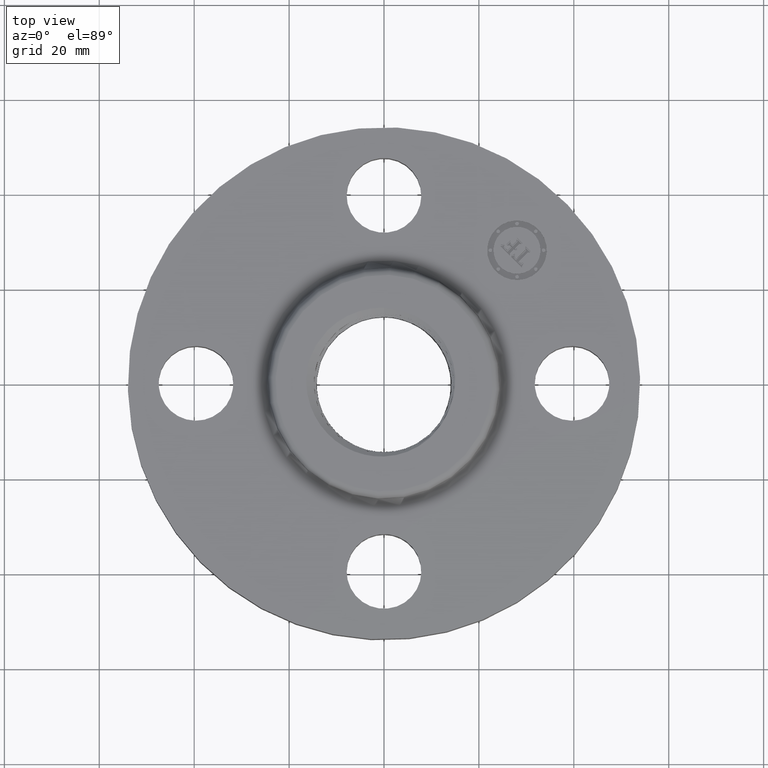
[diagram: clean part render]
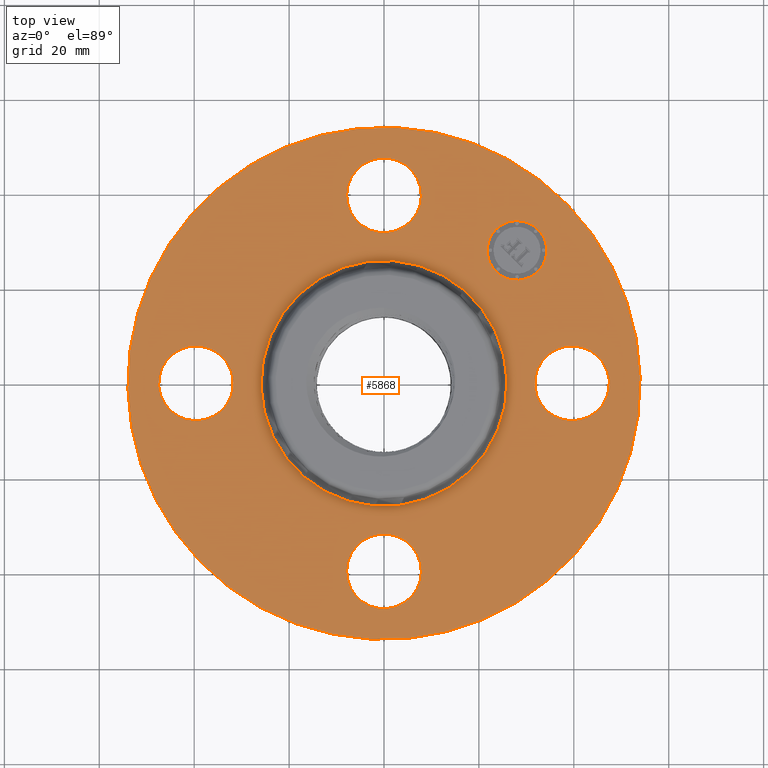
[diagram: same view with one face highlighted and labeled with its STEP entity id]
A machine part, top view. The second image highlights one B-rep face of the part: STEP entity #5868.
In plain terms, the highlighted planar face has unit normal (0, 0, -1).
Its self-contained STEP definition (entity closure, byte-faithful):
#525=AXIS2_PLACEMENT_3D('Circle Axis2P3D',#523,#524,$) ;
#549=AXIS2_PLACEMENT_3D('Circle Axis2P3D',#547,#548,$) ;
#583=AXIS2_PLACEMENT_3D('Circle Axis2P3D',#581,#582,$) ;
#607=AXIS2_PLACEMENT_3D('Circle Axis2P3D',#605,#606,$) ;
#624=AXIS2_PLACEMENT_3D('Circle Axis2P3D',#622,#623,$) ;
#659=AXIS2_PLACEMENT_3D('Circle Axis2P3D',#657,#658,$) ;
#936=AXIS2_PLACEMENT_3D('Circle Axis2P3D',#934,#935,$) ;
#948=AXIS2_PLACEMENT_3D('Circle Axis2P3D',#946,#947,$) ;
#980=AXIS2_PLACEMENT_3D('Circle Axis2P3D',#978,#979,$) ;
#992=AXIS2_PLACEMENT_3D('Circle Axis2P3D',#990,#991,$) ;
#1024=AXIS2_PLACEMENT_3D('Circle Axis2P3D',#1022,#1023,$) ;
#1036=AXIS2_PLACEMENT_3D('Circle Axis2P3D',#1034,#1035,$) ;
#5824=AXIS2_PLACEMENT_3D('Plane Axis2P3D',#5821,#5822,#5823) ;
#5852=AXIS2_PLACEMENT_3D('Circle Axis2P3D',#5850,#5851,$) ;
#5861=AXIS2_PLACEMENT_3D('Circle Axis2P3D',#5859,#5860,$) ;
#506=CARTESIAN_POINT('Vertex',(-0.272050594187,1.70862191697,0.500000000002)) ;
#520=CARTESIAN_POINT('Vertex',(0.272050594187,1.41137808304,0.500000000002)) ;
#523=CARTESIAN_POINT('Axis2P3D Location',(0.,1.56000000001,0.500000000002)) ;
#547=CARTESIAN_POINT('Axis2P3D Location',(0.,1.56000000001,0.500000000002)) ;
#578=CARTESIAN_POINT('Vertex',(-1.01877926954,-1.86486294402,0.500000000002)) ;
#581=CARTESIAN_POINT('Axis2P3D Location',(0.,0.,0.500000000002)) ;
#585=CARTESIAN_POINT('Vertex',(1.01877926954,1.86486294402,0.500000000002)) ;
#605=CARTESIAN_POINT('Axis2P3D Location',(0.,0.,0.500000000002)) ;
#622=CARTESIAN_POINT('Axis2P3D Location',(0.,0.,0.500000000002)) ;
#626=CARTESIAN_POINT('Vertex',(0.489179920005,0.895437837278,0.500000000002)) ;
#628=CARTESIAN_POINT('Vertex',(-0.489179920005,-0.895437837278,0.500000000002)) ;
#657=CARTESIAN_POINT('Axis2P3D Location',(0.,0.,0.500000000002)) ;
#924=CARTESIAN_POINT('Vertex',(1.70862191697,0.272050594187,0.500000000002)) ;
#931=CARTESIAN_POINT('Vertex',(1.41137808304,-0.272050594187,0.500000000002)) ;
#934=CARTESIAN_POINT('Axis2P3D Location',(1.56000000001,9.55192955985E-017,0.500000000002)) ;
#946=CARTESIAN_POINT('Axis2P3D Location',(1.56000000001,9.55192955985E-017,0.500000000002)) ;
#968=CARTESIAN_POINT('Vertex',(-1.70862191697,-0.272050594187,0.500000000002)) ;
#975=CARTESIAN_POINT('Vertex',(-1.41137808304,0.272050594187,0.500000000002)) ;
#978=CARTESIAN_POINT('Axis2P3D Location',(-1.56000000001,-2.86557886796E-016,0.500000000002)) ;
#990=CARTESIAN_POINT('Axis2P3D Location',(-1.56000000001,-2.86557886796E-016,0.500000000002)) ;
#1012=CARTESIAN_POINT('Vertex',(0.272050594187,-1.70862191697,0.500000000002)) ;
#1019=CARTESIAN_POINT('Vertex',(-0.272050594187,-1.41137808304,0.500000000002)) ;
#1022=CARTESIAN_POINT('Axis2P3D Location',(1.91044721553E-016,-1.56000000001,0.500000000002)) ;
#1034=CARTESIAN_POINT('Axis2P3D Location',(1.91044721553E-016,-1.56000000001,0.500000000002)) ;
#5821=CARTESIAN_POINT('Axis2P3D Location',(0.,2.12500000001,0.500000000002)) ;
#5850=CARTESIAN_POINT('Axis2P3D Location',(1.10308657866,1.10308657866,0.500000000002)) ;
#5854=CARTESIAN_POINT('Vertex',(0.928077650311,1.278095507,0.500000000002)) ;
#5856=CARTESIAN_POINT('Vertex',(1.278095507,0.928077650311,0.500000000002)) ;
#5859=CARTESIAN_POINT('Axis2P3D Location',(1.10308657866,1.10308657866,0.500000000002)) ;
#524=DIRECTION('Axis2P3D Direction',(0.,-0.,-0.0393700787402)) ;
#548=DIRECTION('Axis2P3D Direction',(0.,-0.,-0.0393700787402)) ;
#582=DIRECTION('Axis2P3D Direction',(0.,0.,-0.0393700787402)) ;
#606=DIRECTION('Axis2P3D Direction',(0.,0.,-0.0393700787402)) ;
#623=DIRECTION('Axis2P3D Direction',(0.,0.,-0.0393700787402)) ;
#658=DIRECTION('Axis2P3D Direction',(0.,0.,-0.0393700787402)) ;
#935=DIRECTION('Axis2P3D Direction',(0.,-0.,-0.0393700787402)) ;
#947=DIRECTION('Axis2P3D Direction',(0.,-0.,-0.0393700787402)) ;
#979=DIRECTION('Axis2P3D Direction',(0.,0.,-0.0393700787402)) ;
#991=DIRECTION('Axis2P3D Direction',(0.,0.,-0.0393700787402)) ;
#1023=DIRECTION('Axis2P3D Direction',(-0.,0.,-0.0393700787402)) ;
#1035=DIRECTION('Axis2P3D Direction',(-0.,0.,-0.0393700787402)) ;
#5822=DIRECTION('Axis2P3D Direction',(0.,0.,-0.0393700787402)) ;
#5823=DIRECTION('Axis2P3D XDirection',(0.0393700787402,0.,0.)) ;
#5851=DIRECTION('Axis2P3D Direction',(0.,0.,-0.0393700787402)) ;
#5860=DIRECTION('Axis2P3D Direction',(0.,0.,-0.0393700787402)) ;
#5827=ORIENTED_EDGE('',*,*,#609,.F.) ;
#5828=ORIENTED_EDGE('',*,*,#587,.F.) ;
#5831=ORIENTED_EDGE('',*,*,#527,.T.) ;
#5832=ORIENTED_EDGE('',*,*,#551,.T.) ;
#5835=ORIENTED_EDGE('',*,*,#661,.T.) ;
#5836=ORIENTED_EDGE('',*,*,#630,.T.) ;
#5839=ORIENTED_EDGE('',*,*,#950,.T.) ;
#5840=ORIENTED_EDGE('',*,*,#938,.T.) ;
#5843=ORIENTED_EDGE('',*,*,#1038,.T.) ;
#5844=ORIENTED_EDGE('',*,*,#1026,.T.) ;
#5847=ORIENTED_EDGE('',*,*,#994,.T.) ;
#5848=ORIENTED_EDGE('',*,*,#982,.T.) ;
#5865=ORIENTED_EDGE('',*,*,#5858,.T.) ;
#5866=ORIENTED_EDGE('',*,*,#5863,.T.) ;
#5833=FACE_BOUND('',#5830,.T.) ;
#5837=FACE_BOUND('',#5834,.T.) ;
#5841=FACE_BOUND('',#5838,.T.) ;
#5845=FACE_BOUND('',#5842,.T.) ;
#5849=FACE_BOUND('',#5846,.T.) ;
#5867=FACE_BOUND('',#5864,.T.) ;
#5868=ADVANCED_FACE('PartBody',(#5829,#5833,#5837,#5841,#5845,#5849,#5867),#5825,.F.) ;
#526=CIRCLE('generated circle',#525,0.310000000001) ;
#550=CIRCLE('generated circle',#549,0.310000000001) ;
#584=CIRCLE('generated circle',#583,2.12500000001) ;
#608=CIRCLE('generated circle',#607,2.12500000001) ;
#625=CIRCLE('generated circle',#624,1.02034597787) ;
#660=CIRCLE('generated circle',#659,1.02034597787) ;
#937=CIRCLE('generated circle',#936,0.310000000001) ;
#949=CIRCLE('generated circle',#948,0.310000000001) ;
#981=CIRCLE('generated circle',#980,0.310000000001) ;
#993=CIRCLE('generated circle',#992,0.310000000001) ;
#1025=CIRCLE('generated circle',#1024,0.310000000001) ;
#1037=CIRCLE('generated circle',#1036,0.310000000001) ;
#5853=CIRCLE('generated circle',#5852,0.247500000001) ;
#5862=CIRCLE('generated circle',#5861,0.247500000001) ;
#527=EDGE_CURVE('',#507,#521,#526,.T.) ;
#551=EDGE_CURVE('',#521,#507,#550,.T.) ;
#587=EDGE_CURVE('',#579,#586,#584,.T.) ;
#609=EDGE_CURVE('',#586,#579,#608,.T.) ;
#630=EDGE_CURVE('',#627,#629,#625,.T.) ;
#661=EDGE_CURVE('',#629,#627,#660,.T.) ;
#938=EDGE_CURVE('',#925,#932,#937,.T.) ;
#950=EDGE_CURVE('',#932,#925,#949,.T.) ;
#982=EDGE_CURVE('',#969,#976,#981,.T.) ;
#994=EDGE_CURVE('',#976,#969,#993,.T.) ;
#1026=EDGE_CURVE('',#1013,#1020,#1025,.T.) ;
#1038=EDGE_CURVE('',#1020,#1013,#1037,.T.) ;
#5858=EDGE_CURVE('',#5855,#5857,#5853,.T.) ;
#5863=EDGE_CURVE('',#5857,#5855,#5862,.T.) ;
#5826=EDGE_LOOP('',(#5827,#5828)) ;
#5830=EDGE_LOOP('',(#5831,#5832)) ;
#5834=EDGE_LOOP('',(#5835,#5836)) ;
#5838=EDGE_LOOP('',(#5839,#5840)) ;
#5842=EDGE_LOOP('',(#5843,#5844)) ;
#5846=EDGE_LOOP('',(#5847,#5848)) ;
#5864=EDGE_LOOP('',(#5865,#5866)) ;
#5829=FACE_OUTER_BOUND('',#5826,.T.) ;
#5825=PLANE('',#5824) ;
#507=VERTEX_POINT('',#506) ;
#521=VERTEX_POINT('',#520) ;
#579=VERTEX_POINT('',#578) ;
#586=VERTEX_POINT('',#585) ;
#627=VERTEX_POINT('',#626) ;
#629=VERTEX_POINT('',#628) ;
#925=VERTEX_POINT('',#924) ;
#932=VERTEX_POINT('',#931) ;
#969=VERTEX_POINT('',#968) ;
#976=VERTEX_POINT('',#975) ;
#1013=VERTEX_POINT('',#1012) ;
#1020=VERTEX_POINT('',#1019) ;
#5855=VERTEX_POINT('',#5854) ;
#5857=VERTEX_POINT('',#5856) ;